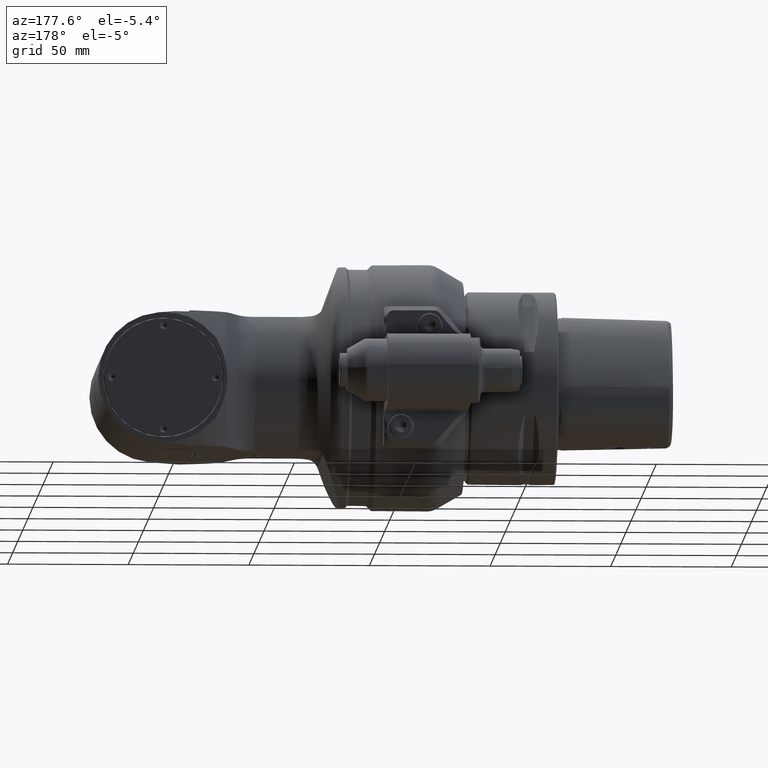
[diagram: clean part render]
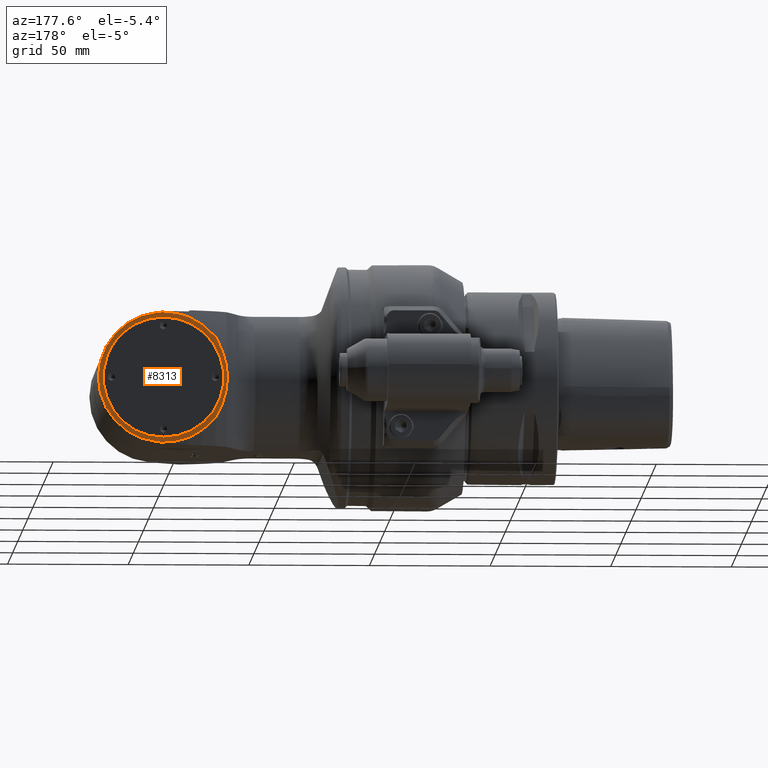
[diagram: same view with one face highlighted and labeled with its STEP entity id]
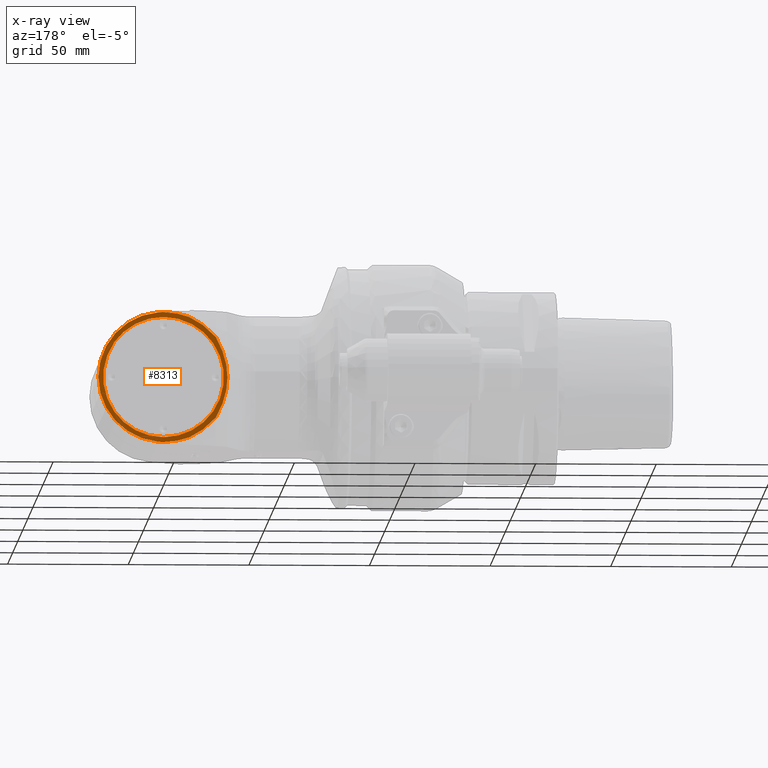
[diagram: x-ray of the same camera — body ghosted, the highlighted face saturated]
A machine part, auxiliary view. The second image highlights one B-rep face of the part: STEP entity #8313.
The next image is the same camera in x-ray: the body ghosted, the highlighted face saturated — about 0% of this face is hidden behind the body in this view.
In plain terms, the highlighted planar face has unit normal (0, -1, -0).
Its self-contained STEP definition (entity closure, byte-faithful):
#216=FACE_BOUND('',#1648,.T.);
#308=(
BOUNDED_CURVE()
B_SPLINE_CURVE(2,(#12610,#12611,#12612),.UNSPECIFIED.,.F.,.F.)
B_SPLINE_CURVE_WITH_KNOTS((3,3),(2.12240903003813,2.6668342137901),
 .UNSPECIFIED.)
CURVE()
GEOMETRIC_REPRESENTATION_ITEM()
RATIONAL_B_SPLINE_CURVE((1.00482931293366,1.00508678354202,1.00515857999473))
REPRESENTATION_ITEM('')
);
#309=(
BOUNDED_CURVE()
B_SPLINE_CURVE(2,(#12620,#12621,#12622),.UNSPECIFIED.,.F.,.F.)
B_SPLINE_CURVE_WITH_KNOTS((3,3),(2.34152579847751,2.94848349433647),
 .UNSPECIFIED.)
CURVE()
GEOMETRIC_REPRESENTATION_ITEM()
RATIONAL_B_SPLINE_CURVE((1.00071082082717,1.00073630306879,1.00072723442401))
REPRESENTATION_ITEM('')
);
#310=(
BOUNDED_CURVE()
B_SPLINE_CURVE(2,(#12624,#12625,#12626),.UNSPECIFIED.,.F.,.F.)
B_SPLINE_CURVE_WITH_KNOTS((3,3),(-2.66683421379012,-2.12240903003871),
 .UNSPECIFIED.)
CURVE()
GEOMETRIC_REPRESENTATION_ITEM()
RATIONAL_B_SPLINE_CURVE((1.00515857999473,1.00508678354202,1.00482931293366))
REPRESENTATION_ITEM('')
);
#311=(
BOUNDED_CURVE()
B_SPLINE_CURVE(2,(#12628,#12629,#12630),.UNSPECIFIED.,.F.,.F.)
B_SPLINE_CURVE_WITH_KNOTS((3,3),(-2.7175592419339,-1.97591248389695),
 .UNSPECIFIED.)
CURVE()
GEOMETRIC_REPRESENTATION_ITEM()
RATIONAL_B_SPLINE_CURVE((1.01835424947623,1.01776027932487,1.01612349546753))
REPRESENTATION_ITEM('')
);
#312=(
BOUNDED_CURVE()
B_SPLINE_CURVE(2,(#12649,#12650,#12651),.UNSPECIFIED.,.F.,.F.)
B_SPLINE_CURVE_WITH_KNOTS((3,3),(-11.3892303399821,-8.4816561412547),
 .UNSPECIFIED.)
CURVE()
GEOMETRIC_REPRESENTATION_ITEM()
RATIONAL_B_SPLINE_CURVE((1.33389149965047,1.37835454963827,1.37835454963827))
REPRESENTATION_ITEM('')
);
#313=(
BOUNDED_CURVE()
B_SPLINE_CURVE(2,(#12653,#12654,#12655),.UNSPECIFIED.,.F.,.F.)
B_SPLINE_CURVE_WITH_KNOTS((3,3),(-8.4816561412547,-5.57408194252726),
 .UNSPECIFIED.)
CURVE()
GEOMETRIC_REPRESENTATION_ITEM()
RATIONAL_B_SPLINE_CURVE((1.37835454963827,1.37835454963827,1.33389149965047))
REPRESENTATION_ITEM('')
);
#314=(
BOUNDED_CURVE()
B_SPLINE_CURVE(2,(#12673,#12674,#12675),.UNSPECIFIED.,.F.,.F.)
B_SPLINE_CURVE_WITH_KNOTS((3,3),(-4.30406646661493,-3.56241970857873),
 .UNSPECIFIED.)
CURVE()
GEOMETRIC_REPRESENTATION_ITEM()
RATIONAL_B_SPLINE_CURVE((1.01612349546754,1.01776027932488,1.01835424947624))
REPRESENTATION_ITEM('')
);
#315=(
BOUNDED_CURVE()
B_SPLINE_CURVE(2,(#12677,#12678,#12679),.UNSPECIFIED.,.F.,.F.)
B_SPLINE_CURVE_WITH_KNOTS((3,3),(-3.23682223052076,-2.62986453466136),
 .UNSPECIFIED.)
CURVE()
GEOMETRIC_REPRESENTATION_ITEM()
RATIONAL_B_SPLINE_CURVE((1.00071082082708,1.0007363030687,1.00072723442392))
REPRESENTATION_ITEM('')
);
#431=B_SPLINE_CURVE_WITH_KNOTS('',3,(#12632,#12633,#12634,#12635,#12636,
#12637,#12638,#12639,#12640,#12641,#12642,#12643,#12644,#12645,#12646,#12647),
 .UNSPECIFIED.,.F.,.F.,(4,3,3,3,3,4),(0.,0.3333333333333,0.643295400777038,
0.6666666666667,0.974925741068907,1.),.UNSPECIFIED.);
#432=B_SPLINE_CURVE_WITH_KNOTS('',3,(#12657,#12658,#12659,#12660,#12661,
#12662,#12663,#12664,#12665,#12666,#12667,#12668,#12669,#12670,#12671,#12672),
 .UNSPECIFIED.,.F.,.F.,(4,3,3,3,3,4),(0.,0.308331703925869,0.3333333333333,
0.643267833951942,0.6666666666667,1.),.UNSPECIFIED.);
#714=CIRCLE('',#8911,27.);
#715=CIRCLE('',#8912,25.);
#1127=FACE_OUTER_BOUND('',#1647,.T.);
#1647=EDGE_LOOP('',(#5589,#5590,#5591,#5592,#5593,#5594,#5595,#5596,#5597,
#5598,#5599,#5600,#5601));
#1648=EDGE_LOOP('',(#5602));
#2247=LINE('',#12618,#2814);
#2248=LINE('',#12681,#2815);
#2814=VECTOR('',#9915,1.97939553944791);
#2815=VECTOR('',#9916,1.97939553945309);
#3419=VERTEX_POINT('',#12608);
#3420=VERTEX_POINT('',#12609);
#3421=VERTEX_POINT('',#12616);
#3422=VERTEX_POINT('',#12617);
#3423=VERTEX_POINT('',#12619);
#3424=VERTEX_POINT('',#12623);
#3425=VERTEX_POINT('',#12627);
#3426=VERTEX_POINT('',#12631);
#3427=VERTEX_POINT('',#12648);
#3428=VERTEX_POINT('',#12652);
#3429=VERTEX_POINT('',#12656);
#3430=VERTEX_POINT('',#12676);
#3431=VERTEX_POINT('',#12680);
#3432=VERTEX_POINT('',#12683);
#4275=EDGE_CURVE('',#3419,#3420,#308,.T.);
#4278=EDGE_CURVE('',#3421,#3422,#2247,.T.);
#4279=EDGE_CURVE('',#3423,#3422,#309,.T.);
#4280=EDGE_CURVE('',#3423,#3424,#310,.T.);
#4281=EDGE_CURVE('',#3424,#3425,#311,.T.);
#4282=EDGE_CURVE('',#3425,#3426,#431,.T.);
#4283=EDGE_CURVE('',#3426,#3427,#312,.T.);
#4284=EDGE_CURVE('',#3427,#3428,#313,.T.);
#4285=EDGE_CURVE('',#3428,#3429,#432,.T.);
#4286=EDGE_CURVE('',#3429,#3419,#314,.T.);
#4287=EDGE_CURVE('',#3430,#3420,#315,.F.);
#4288=EDGE_CURVE('',#3430,#3431,#2248,.T.);
#4289=EDGE_CURVE('',#3431,#3421,#714,.T.);
#4290=EDGE_CURVE('',#3432,#3432,#715,.T.);
#5589=ORIENTED_EDGE('',*,*,#4278,.T.);
#5590=ORIENTED_EDGE('',*,*,#4279,.F.);
#5591=ORIENTED_EDGE('',*,*,#4280,.T.);
#5592=ORIENTED_EDGE('',*,*,#4281,.T.);
#5593=ORIENTED_EDGE('',*,*,#4282,.T.);
#5594=ORIENTED_EDGE('',*,*,#4283,.T.);
#5595=ORIENTED_EDGE('',*,*,#4284,.T.);
#5596=ORIENTED_EDGE('',*,*,#4285,.T.);
#5597=ORIENTED_EDGE('',*,*,#4286,.T.);
#5598=ORIENTED_EDGE('',*,*,#4275,.T.);
#5599=ORIENTED_EDGE('',*,*,#4287,.F.);
#5600=ORIENTED_EDGE('',*,*,#4288,.T.);
#5601=ORIENTED_EDGE('',*,*,#4289,.T.);
#5602=ORIENTED_EDGE('',*,*,#4290,.T.);
#8067=PLANE('',#8910);
#8313=ADVANCED_FACE('',(#1127,#216),#8067,.F.);
#8910=AXIS2_PLACEMENT_3D('',#12615,#9913,#9914);
#8911=AXIS2_PLACEMENT_3D('',#12682,#9917,#9918);
#8912=AXIS2_PLACEMENT_3D('',#12684,#9919,#9920);
#9913=DIRECTION('center_axis',(0.,-1.,0.));
#9914=DIRECTION('ref_axis',(-1.,0.,0.));
#9915=DIRECTION('',(-0.996194698091746,0.,-0.087155742747654));
#9916=DIRECTION('',(0.996194698091753,0.,-0.0871557427475759));
#9917=DIRECTION('center_axis',(0.,1.,0.));
#9918=DIRECTION('ref_axis',(0.0871557427478227,0.,0.996194698091731));
#9919=DIRECTION('center_axis',(0.,-1.,0.));
#9920=DIRECTION('ref_axis',(-0.570923988027101,0.,0.821002923195302));
#12608=CARTESIAN_POINT('',(79.3995881857041,44.9999999925751,25.0449596064515));
#12609=CARTESIAN_POINT('',(84.3803469623107,44.99999999894,26.4544892285225));
#12610=CARTESIAN_POINT('Ctrl Pts',(79.3995881909393,45.,25.0449595883663));
#12611=CARTESIAN_POINT('Ctrl Pts',(81.8218063898424,45.,25.7449670755913));
#12612=CARTESIAN_POINT('Ctrl Pts',(84.3803469625972,45.,26.4544892276248));
#12615=CARTESIAN_POINT('Origin',(74.,45.,-60.0000024));
#12616=CARTESIAN_POINT('',(92.35320505418,45.,-26.89725684848));
#12617=CARTESIAN_POINT('',(90.38134171236,45.,-27.06977253691));
#12618=CARTESIAN_POINT('',(92.35320505419,45.,-26.89725684848));
#12619=CARTESIAN_POINT('',(84.380346962336,44.9999999984124,-26.4544892285235));
#12620=CARTESIAN_POINT('Ctrl Pts',(84.3803469627923,45.,-26.4544892241582));
#12621=CARTESIAN_POINT('Ctrl Pts',(87.3463523912338,45.,-26.7612069116923));
#12622=CARTESIAN_POINT('Ctrl Pts',(90.38134171236,45.,-27.0697725369126));
#12623=CARTESIAN_POINT('',(79.3995881857082,44.9999999925741,-25.0449596064568));
#12624=CARTESIAN_POINT('Ctrl Pts',(84.3803469625973,45.,-26.4544892276249));
#12625=CARTESIAN_POINT('Ctrl Pts',(81.8218063898452,45.,-25.7449670755921));
#12626=CARTESIAN_POINT('Ctrl Pts',(79.3995881909444,45.,-25.0449595883678));
#12627=CARTESIAN_POINT('',(73.8015119255,45.,-21.7944947177));
#12628=CARTESIAN_POINT('Ctrl Pts',(79.3995881885931,45.,-25.0449596012479));
#12629=CARTESIAN_POINT('Ctrl Pts',(76.4063083587461,45.,-23.3957089458327));
#12630=CARTESIAN_POINT('Ctrl Pts',(73.8015119254964,45.,-21.7944947177052));
#12631=CARTESIAN_POINT('',(68.30655708659,45.,-16.70329308849));
#12632=CARTESIAN_POINT('Ctrl Pts',(73.8015119254989,45.0000000000027,-21.7944947177013));
#12633=CARTESIAN_POINT('Ctrl Pts',(73.1237641341401,44.9999999999996,-21.2285719340198));
#12634=CARTESIAN_POINT('Ctrl Pts',(72.4680186269166,44.9999981056832,-20.6631828820479));
#12635=CARTESIAN_POINT('Ctrl Pts',(71.8344750353571,44.9999995642928,-20.0977194140638));
#12636=CARTESIAN_POINT('Ctrl Pts',(71.2453515909905,45.0000009206337,-19.5719027372631));
#12637=CARTESIAN_POINT('Ctrl Pts',(70.6754274708735,45.0000015222338,-19.0460192750485));
#12638=CARTESIAN_POINT('Ctrl Pts',(70.1254543578923,45.0000000594246,-18.5200599290578));
#12639=CARTESIAN_POINT('Ctrl Pts',(70.0839861616009,44.9999999491282,-18.4804023805594));
#12640=CARTESIAN_POINT('Ctrl Pts',(70.0426313912002,44.9999998380982,-18.4407443786878));
#12641=CARTESIAN_POINT('Ctrl Pts',(70.0013903689128,44.9999997310239,-18.401085908732));
#12642=CARTESIAN_POINT('Ctrl Pts',(69.457435265336,44.99999831875,-17.8780041339372));
#12643=CARTESIAN_POINT('Ctrl Pts',(68.9332668944154,44.9999991288403,-17.354846684431));
#12644=CARTESIAN_POINT('Ctrl Pts',(68.4291704251288,44.999999898975,-16.8311096143003));
#12645=CARTESIAN_POINT('Ctrl Pts',(68.3881664565623,44.9999999616189,-16.7885080495816));
#12646=CARTESIAN_POINT('Ctrl Pts',(68.3472952925573,45.0000000000013,-16.7459026341638));
#12647=CARTESIAN_POINT('Ctrl Pts',(68.3065570865895,45.0000000000014,-16.7032930884906));
#12648=CARTESIAN_POINT('',(63.50555349947,45.,3.337225302173E-14));
#12649=CARTESIAN_POINT('Ctrl Pts',(68.3065570865326,45.,-16.7032930883842));
#12650=CARTESIAN_POINT('Ctrl Pts',(63.5055534994684,45.,-8.08223859115683));
#12651=CARTESIAN_POINT('Ctrl Pts',(63.5055534994684,45.,1.03100140083198E-14));
#12652=CARTESIAN_POINT('',(68.30655708659,45.,16.70329308849));
#12653=CARTESIAN_POINT('Ctrl Pts',(63.5055534994684,45.,1.03100140083198E-14));
#12654=CARTESIAN_POINT('Ctrl Pts',(63.5055534994684,45.,8.08223859115685));
#12655=CARTESIAN_POINT('Ctrl Pts',(68.3065570865326,45.,16.7032930883842));
#12656=CARTESIAN_POINT('',(73.8015119255,45.,21.7944947177));
#12657=CARTESIAN_POINT('Ctrl Pts',(68.3065570865895,45.0000000000014,16.7032930884905));
#12658=CARTESIAN_POINT('Ctrl Pts',(68.8074963550904,45.0000000000022,17.2272433738176));
#12659=CARTESIAN_POINT('Ctrl Pts',(69.328542310536,44.9999978552568,17.7505743868481));
#12660=CARTESIAN_POINT('Ctrl Pts',(69.8694099252439,44.9999993701591,18.2737924404767));
#12661=CARTESIAN_POINT('Ctrl Pts',(69.9132671461824,44.9999994929977,18.316218515089));
#12662=CARTESIAN_POINT('Ctrl Pts',(69.957254695882,44.9999996163087,18.3586438314203));
#12663=CARTESIAN_POINT('Ctrl Pts',(70.0013724223801,44.9999997308443,18.4010686511845));
#12664=CARTESIAN_POINT('Ctrl Pts',(70.5482809981281,45.0000011506919,18.9269909866128));
#12665=CARTESIAN_POINT('Ctrl Pts',(71.1151962148149,45.0000013614818,19.4528374568549));
#12666=CARTESIAN_POINT('Ctrl Pts',(71.7013668322261,44.9999998876485,19.9786203849466));
#12667=CARTESIAN_POINT('Ctrl Pts',(71.7456204025506,44.9999997763799,20.0183149228381));
#12668=CARTESIAN_POINT('Ctrl Pts',(71.7899837220087,44.999999666815,20.0580090766917));
#12669=CARTESIAN_POINT('Ctrl Pts',(71.8344564673407,44.9999995644173,20.0977028411638));
#12670=CARTESIAN_POINT('Ctrl Pts',(72.468002961934,44.9999981056887,20.6631692892276));
#12671=CARTESIAN_POINT('Ctrl Pts',(73.1237545824895,45.0000000000013,21.2285639583406));
#12672=CARTESIAN_POINT('Ctrl Pts',(73.8015119254989,45.0000000000027,21.7944947177013));
#12673=CARTESIAN_POINT('Ctrl Pts',(73.8015119254992,45.,21.7944947177008));
#12674=CARTESIAN_POINT('Ctrl Pts',(76.4063083587463,45.,23.3957089458269));
#12675=CARTESIAN_POINT('Ctrl Pts',(79.3995881885901,45.,25.0449596012407));
#12676=CARTESIAN_POINT('',(90.38134171236,45.,27.06977253691));
#12677=CARTESIAN_POINT('Ctrl Pts',(84.3803469627875,45.,26.4544892241577));
#12678=CARTESIAN_POINT('Ctrl Pts',(87.3463523912315,45.,26.7612069116921));
#12679=CARTESIAN_POINT('Ctrl Pts',(90.38134171236,45.,27.0697725369126));
#12680=CARTESIAN_POINT('',(92.35320505419,45.,26.89725684848));
#12681=CARTESIAN_POINT('',(90.38134171236,45.,27.06977253691));
#12682=CARTESIAN_POINT('Origin',(90.,45.,0.));
#12683=CARTESIAN_POINT('',(90.,45.,25.));
#12684=CARTESIAN_POINT('Origin',(90.,45.,0.));